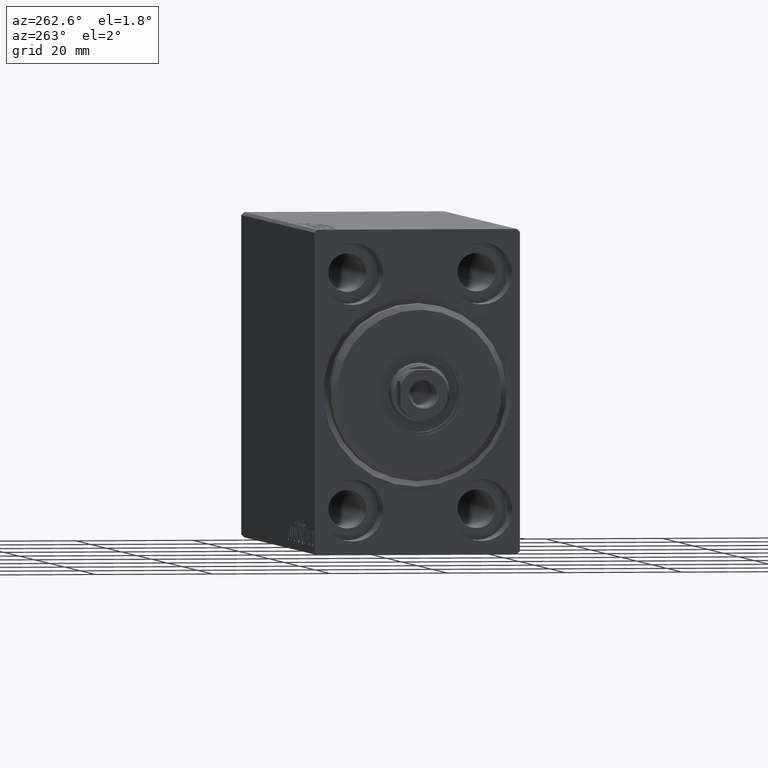
[diagram: clean part render]
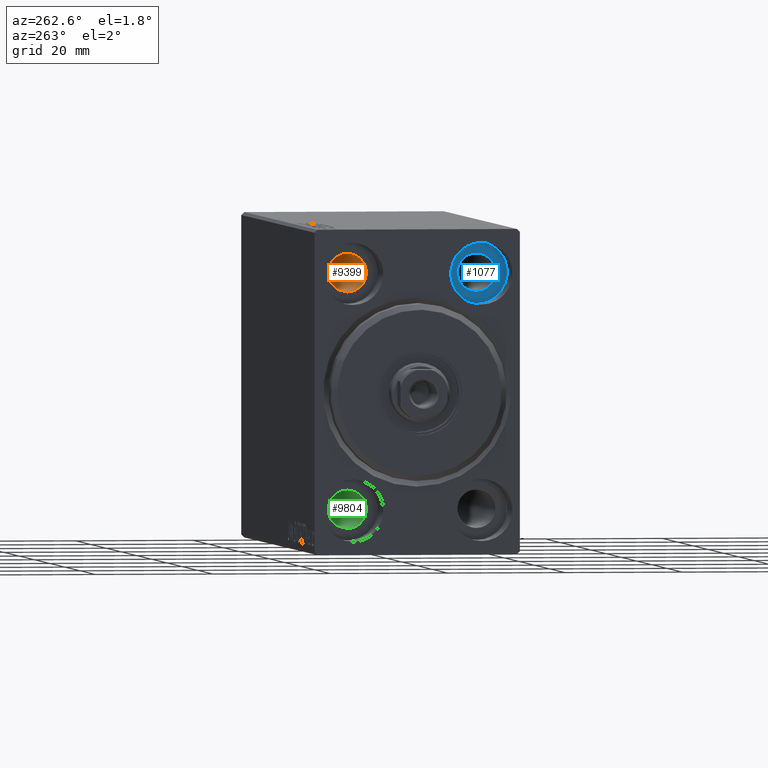
[diagram: same view with three faces highlighted in distinct colors, each labeled with its STEP entity id]
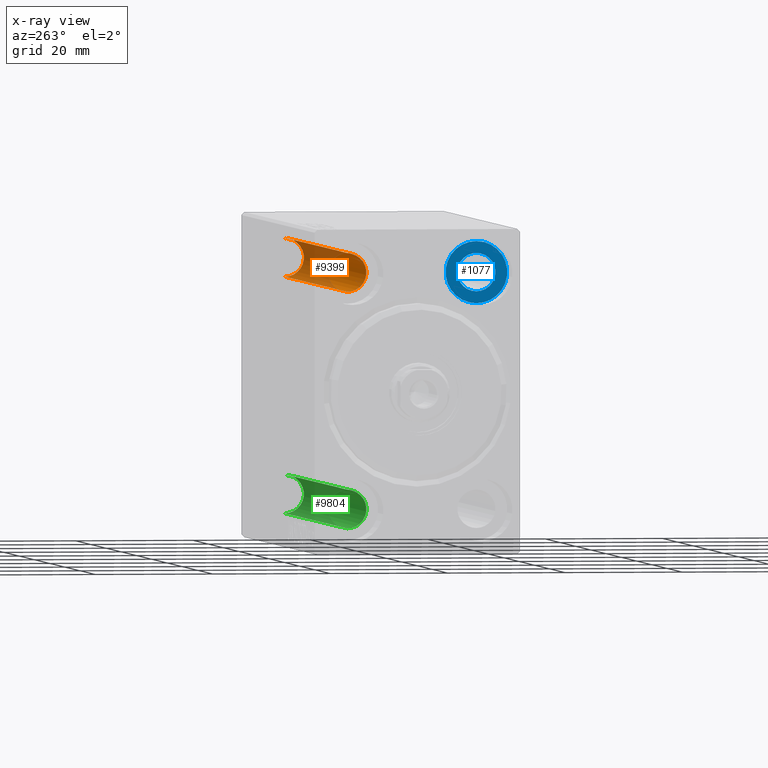
[diagram: x-ray of the same camera — body ghosted, the three highlighted faces saturated]
A machine part, auxiliary view with three faces highlighted in distinct colors.
The next image is the same camera in x-ray (body ghosted, the three faces saturated) — at least one of them is partly hidden behind the body in this view.
Their STEP definitions:

[orange] entity #9399 — the highlighted cylindrical surface (edge-blend (fillet) strip) has radius 3.25 mm, axis along (-1, -0, -0).
#2284 = CARTESIAN_POINT ( 'NONE',  ( 89.00000000000000000, 11.00000000000000355, 20.00000000000000000 ) ) ;
#3468 = CARTESIAN_POINT ( 'NONE',  ( 7.000000000000006217, 11.00000000000000355, 16.75000000000000000 ) ) ;
#4011 = ORIENTED_EDGE ( 'NONE', *, *, #27431, .T. ) ;
#5259 = CARTESIAN_POINT ( 'NONE',  ( 96.00000000000000000, 11.00000000000000355, 23.25000000000000000 ) ) ;
#5270 = DIRECTION ( 'NONE',  ( -1.000000000000000000, -0.000000000000000000, -0.000000000000000000 ) ) ;
#7838 = VECTOR ( 'NONE', #8248, 1000.000000000000000 ) ;
#8025 = LINE ( 'NONE', #8458, #7838 ) ;
#8248 = DIRECTION ( 'NONE',  ( -1.000000000000000000, -0.000000000000000000, -0.000000000000000000 ) ) ;
#8364 = DIRECTION ( 'NONE',  ( -1.000000000000000000, -0.000000000000000000, -0.000000000000000000 ) ) ;
#8458 = CARTESIAN_POINT ( 'NONE',  ( 96.00000000000000000, 11.00000000000000355, 16.75000000000000000 ) ) ;
#9399 = ADVANCED_FACE ( 'NONE', ( #21694 ), #11474, .F. ) ;
#9469 = DIRECTION ( 'NONE',  ( 0.000000000000000000, 0.000000000000000000, 1.000000000000000000 ) ) ;
#11073 = VERTEX_POINT ( 'NONE', #20187 ) ;
#11474 = CYLINDRICAL_SURFACE ( 'NONE', #23951, 3.249999999999999556 ) ;
#11564 = AXIS2_PLACEMENT_3D ( 'NONE', #2284, #36005, #29339 ) ;
#12212 = EDGE_CURVE ( 'NONE', #11073, #31297, #42322, .T. ) ;
#15242 = CARTESIAN_POINT ( 'NONE',  ( 96.00000000000000000, 11.00000000000000355, 20.00000000000000000 ) ) ;
#16951 = CARTESIAN_POINT ( 'NONE',  ( 7.000000000000006217, 11.00000000000000355, 23.25000000000000000 ) ) ;
#17514 = VERTEX_POINT ( 'NONE', #3468 ) ;
#19451 = DIRECTION ( 'NONE',  ( -1.000000000000000000, 0.000000000000000000, 0.000000000000000000 ) ) ;
#20187 = CARTESIAN_POINT ( 'NONE',  ( 89.00000000000000000, 11.00000000000000355, 23.25000000000000000 ) ) ;
#21318 = EDGE_CURVE ( 'NONE', #43002, #17514, #8025, .T. ) ;
#21694 = FACE_OUTER_BOUND ( 'NONE', #30748, .T. ) ;
#23669 = CARTESIAN_POINT ( 'NONE',  ( 89.00000000000000000, 11.00000000000000355, 16.75000000000000000 ) ) ;
#23951 = AXIS2_PLACEMENT_3D ( 'NONE', #15242, #5270, #31683 ) ;
#24713 = VECTOR ( 'NONE', #8364, 1000.000000000000000 ) ;
#24876 = ORIENTED_EDGE ( 'NONE', *, *, #29826, .F. ) ;
#25030 = CIRCLE ( 'NONE', #11564, 3.249999999999999556 ) ;
#27431 = EDGE_CURVE ( 'NONE', #17514, #31297, #42732, .T. ) ;
#29339 = DIRECTION ( 'NONE',  ( 0.000000000000000000, 0.000000000000000000, -1.000000000000000000 ) ) ;
#29515 = ORIENTED_EDGE ( 'NONE', *, *, #21318, .T. ) ;
#29826 = EDGE_CURVE ( 'NONE', #43002, #11073, #25030, .T. ) ;
#30748 = EDGE_LOOP ( 'NONE', ( #24876, #29515, #4011, #43693 ) ) ;
#31297 = VERTEX_POINT ( 'NONE', #16951 ) ;
#31683 = DIRECTION ( 'NONE',  ( 0.000000000000000000, 0.000000000000000000, 1.000000000000000000 ) ) ;
#36005 = DIRECTION ( 'NONE',  ( -1.000000000000000000, -0.000000000000000000, -0.000000000000000000 ) ) ;
#36981 = CARTESIAN_POINT ( 'NONE',  ( 7.000000000000006217, 11.00000000000000355, 20.00000000000000000 ) ) ;
#37773 = AXIS2_PLACEMENT_3D ( 'NONE', #36981, #19451, #9469 ) ;
#42322 = LINE ( 'NONE', #5259, #24713 ) ;
#42732 = CIRCLE ( 'NONE', #37773, 3.249999999999999556 ) ;
#43002 = VERTEX_POINT ( 'NONE', #23669 ) ;
#43693 = ORIENTED_EDGE ( 'NONE', *, *, #12212, .F. ) ;

[blue] entity #1077 — the highlighted planar face has unit normal (-1, 0, 0).
#1077 = ADVANCED_FACE ( 'NONE', ( #10871, #7768 ), #24402, .T. ) ;
#1387 = CARTESIAN_POINT ( 'NONE',  ( 7.000000000000000000, -11.00000000000000355, 14.75000000000000000 ) ) ;
#1654 = VERTEX_POINT ( 'NONE', #1387 ) ;
#1849 = AXIS2_PLACEMENT_3D ( 'NONE', #33355, #39379, #6291 ) ;
#2555 = CIRCLE ( 'NONE', #1849, 5.250000000000000888 ) ;
#3115 = DIRECTION ( 'NONE',  ( -1.000000000000000000, 0.000000000000000000, 0.000000000000000000 ) ) ;
#4298 = AXIS2_PLACEMENT_3D ( 'NONE', #23336, #40435, #19132 ) ;
#5593 = DIRECTION ( 'NONE',  ( 0.000000000000000000, 0.000000000000000000, 1.000000000000000000 ) ) ;
#5594 = ORIENTED_EDGE ( 'NONE', *, *, #7130, .F. ) ;
#6058 = VERTEX_POINT ( 'NONE', #43840 ) ;
#6291 = DIRECTION ( 'NONE',  ( 0.000000000000000000, 0.000000000000000000, 1.000000000000000000 ) ) ;
#7130 = EDGE_CURVE ( 'NONE', #33183, #6058, #16457, .T. ) ;
#7430 = CIRCLE ( 'NONE', #35052, 3.249999999999999556 ) ;
#7768 = FACE_OUTER_BOUND ( 'NONE', #17408, .T. ) ;
#9404 = AXIS2_PLACEMENT_3D ( 'NONE', #35992, #22461, #5593 ) ;
#10871 = FACE_BOUND ( 'NONE', #23388, .T. ) ;
#16457 = CIRCLE ( 'NONE', #9404, 3.249999999999999556 ) ;
#17080 = DIRECTION ( 'NONE',  ( 0.000000000000000000, 0.000000000000000000, 1.000000000000000000 ) ) ;
#17408 = EDGE_LOOP ( 'NONE', ( #17729, #39093 ) ) ;
#17724 = EDGE_CURVE ( 'NONE', #29198, #1654, #20497, .T. ) ;
#17729 = ORIENTED_EDGE ( 'NONE', *, *, #17724, .T. ) ;
#19132 = DIRECTION ( 'NONE',  ( 0.000000000000000000, 0.000000000000000000, 1.000000000000000000 ) ) ;
#20497 = CIRCLE ( 'NONE', #4298, 5.250000000000000888 ) ;
#21305 = DIRECTION ( 'NONE',  ( 0.000000000000000000, 0.000000000000000000, 1.000000000000000000 ) ) ;
#22461 = DIRECTION ( 'NONE',  ( -1.000000000000000000, 0.000000000000000000, 0.000000000000000000 ) ) ;
#23336 = CARTESIAN_POINT ( 'NONE',  ( 7.000000000000000000, -11.00000000000000355, 20.00000000000000000 ) ) ;
#23388 = EDGE_LOOP ( 'NONE', ( #37081, #5594 ) ) ;
#24337 = CARTESIAN_POINT ( 'NONE',  ( 7.000000000000006217, -11.00000000000000355, 16.75000000000000000 ) ) ;
#24402 = PLANE ( 'NONE',  #31218 ) ;
#24845 = CARTESIAN_POINT ( 'NONE',  ( 7.000000000000000000, 0.000000000000000000, 0.000000000000000000 ) ) ;
#29198 = VERTEX_POINT ( 'NONE', #29890 ) ;
#29890 = CARTESIAN_POINT ( 'NONE',  ( 7.000000000000000000, -11.00000000000000355, 25.25000000000000000 ) ) ;
#31218 = AXIS2_PLACEMENT_3D ( 'NONE', #24845, #34847, #21305 ) ;
#33183 = VERTEX_POINT ( 'NONE', #24337 ) ;
#33355 = CARTESIAN_POINT ( 'NONE',  ( 7.000000000000000000, -11.00000000000000355, 20.00000000000000000 ) ) ;
#33518 = EDGE_CURVE ( 'NONE', #6058, #33183, #7430, .T. ) ;
#34847 = DIRECTION ( 'NONE',  ( -1.000000000000000000, 0.000000000000000000, 0.000000000000000000 ) ) ;
#35052 = AXIS2_PLACEMENT_3D ( 'NONE', #37076, #3115, #17080 ) ;
#35992 = CARTESIAN_POINT ( 'NONE',  ( 7.000000000000006217, -11.00000000000000355, 20.00000000000000000 ) ) ;
#37076 = CARTESIAN_POINT ( 'NONE',  ( 7.000000000000006217, -11.00000000000000355, 20.00000000000000000 ) ) ;
#37081 = ORIENTED_EDGE ( 'NONE', *, *, #33518, .F. ) ;
#39093 = ORIENTED_EDGE ( 'NONE', *, *, #41116, .T. ) ;
#39379 = DIRECTION ( 'NONE',  ( -1.000000000000000000, 0.000000000000000000, 0.000000000000000000 ) ) ;
#40435 = DIRECTION ( 'NONE',  ( -1.000000000000000000, 0.000000000000000000, 0.000000000000000000 ) ) ;
#41116 = EDGE_CURVE ( 'NONE', #1654, #29198, #2555, .T. ) ;
#43840 = CARTESIAN_POINT ( 'NONE',  ( 7.000000000000006217, -11.00000000000000355, 23.25000000000000000 ) ) ;

[green] entity #9804 — the highlighted cylindrical surface (edge-blend (fillet) strip) has radius 3.25 mm, axis along (-1, -0, -0).
#125 = EDGE_CURVE ( 'NONE', #11577, #10215, #16295, .T. ) ;
#173 = CARTESIAN_POINT ( 'NONE',  ( 7.000000000000006217, 11.00000000000000355, -20.00000000000000000 ) ) ;
#747 = EDGE_CURVE ( 'NONE', #13617, #42201, #39735, .T. ) ;
#4324 = ORIENTED_EDGE ( 'NONE', *, *, #125, .T. ) ;
#8551 = AXIS2_PLACEMENT_3D ( 'NONE', #21796, #8705, #28880 ) ;
#8705 = DIRECTION ( 'NONE',  ( -1.000000000000000000, -0.000000000000000000, -0.000000000000000000 ) ) ;
#9361 = CARTESIAN_POINT ( 'NONE',  ( 96.00000000000000000, 11.00000000000000355, -23.25000000000000000 ) ) ;
#9804 = ADVANCED_FACE ( 'NONE', ( #42938 ), #29600, .F. ) ;
#9868 = CARTESIAN_POINT ( 'NONE',  ( 89.00000000000000000, 11.00000000000000355, -23.25000000000000000 ) ) ;
#10215 = VERTEX_POINT ( 'NONE', #17977 ) ;
#11577 = VERTEX_POINT ( 'NONE', #30442 ) ;
#13617 = VERTEX_POINT ( 'NONE', #9868 ) ;
#16295 = CIRCLE ( 'NONE', #24819, 3.249999999999999556 ) ;
#17095 = LINE ( 'NONE', #9361, #32810 ) ;
#17977 = CARTESIAN_POINT ( 'NONE',  ( 7.000000000000006217, 11.00000000000000355, -16.75000000000000000 ) ) ;
#21796 = CARTESIAN_POINT ( 'NONE',  ( 89.00000000000000000, 11.00000000000000355, -20.00000000000000000 ) ) ;
#22736 = CARTESIAN_POINT ( 'NONE',  ( 96.00000000000000000, 11.00000000000000355, -20.00000000000000000 ) ) ;
#23047 = ORIENTED_EDGE ( 'NONE', *, *, #747, .F. ) ;
#24819 = AXIS2_PLACEMENT_3D ( 'NONE', #173, #34556, #33893 ) ;
#27076 = DIRECTION ( 'NONE',  ( -1.000000000000000000, -0.000000000000000000, -0.000000000000000000 ) ) ;
#27781 = EDGE_CURVE ( 'NONE', #13617, #11577, #17095, .T. ) ;
#27925 = CARTESIAN_POINT ( 'NONE',  ( 96.00000000000000000, 11.00000000000000355, -16.75000000000000000 ) ) ;
#28880 = DIRECTION ( 'NONE',  ( 0.000000000000000000, 0.000000000000000000, -1.000000000000000000 ) ) ;
#29600 = CYLINDRICAL_SURFACE ( 'NONE', #34585, 3.249999999999999556 ) ;
#30442 = CARTESIAN_POINT ( 'NONE',  ( 7.000000000000006217, 11.00000000000000355, -23.25000000000000000 ) ) ;
#31259 = LINE ( 'NONE', #27925, #39743 ) ;
#32810 = VECTOR ( 'NONE', #27076, 1000.000000000000000 ) ;
#33307 = CARTESIAN_POINT ( 'NONE',  ( 89.00000000000000000, 11.00000000000000355, -16.75000000000000000 ) ) ;
#33893 = DIRECTION ( 'NONE',  ( 0.000000000000000000, 0.000000000000000000, 1.000000000000000000 ) ) ;
#34420 = EDGE_LOOP ( 'NONE', ( #23047, #39193, #4324, #36940 ) ) ;
#34556 = DIRECTION ( 'NONE',  ( -1.000000000000000000, 0.000000000000000000, 0.000000000000000000 ) ) ;
#34585 = AXIS2_PLACEMENT_3D ( 'NONE', #22736, #43382, #39838 ) ;
#36940 = ORIENTED_EDGE ( 'NONE', *, *, #42861, .F. ) ;
#39193 = ORIENTED_EDGE ( 'NONE', *, *, #27781, .T. ) ;
#39735 = CIRCLE ( 'NONE', #8551, 3.249999999999999556 ) ;
#39743 = VECTOR ( 'NONE', #41477, 1000.000000000000000 ) ;
#39838 = DIRECTION ( 'NONE',  ( 0.000000000000000000, 0.000000000000000000, 1.000000000000000000 ) ) ;
#41477 = DIRECTION ( 'NONE',  ( -1.000000000000000000, -0.000000000000000000, -0.000000000000000000 ) ) ;
#42201 = VERTEX_POINT ( 'NONE', #33307 ) ;
#42861 = EDGE_CURVE ( 'NONE', #42201, #10215, #31259, .T. ) ;
#42938 = FACE_OUTER_BOUND ( 'NONE', #34420, .T. ) ;
#43382 = DIRECTION ( 'NONE',  ( -1.000000000000000000, -0.000000000000000000, -0.000000000000000000 ) ) ;